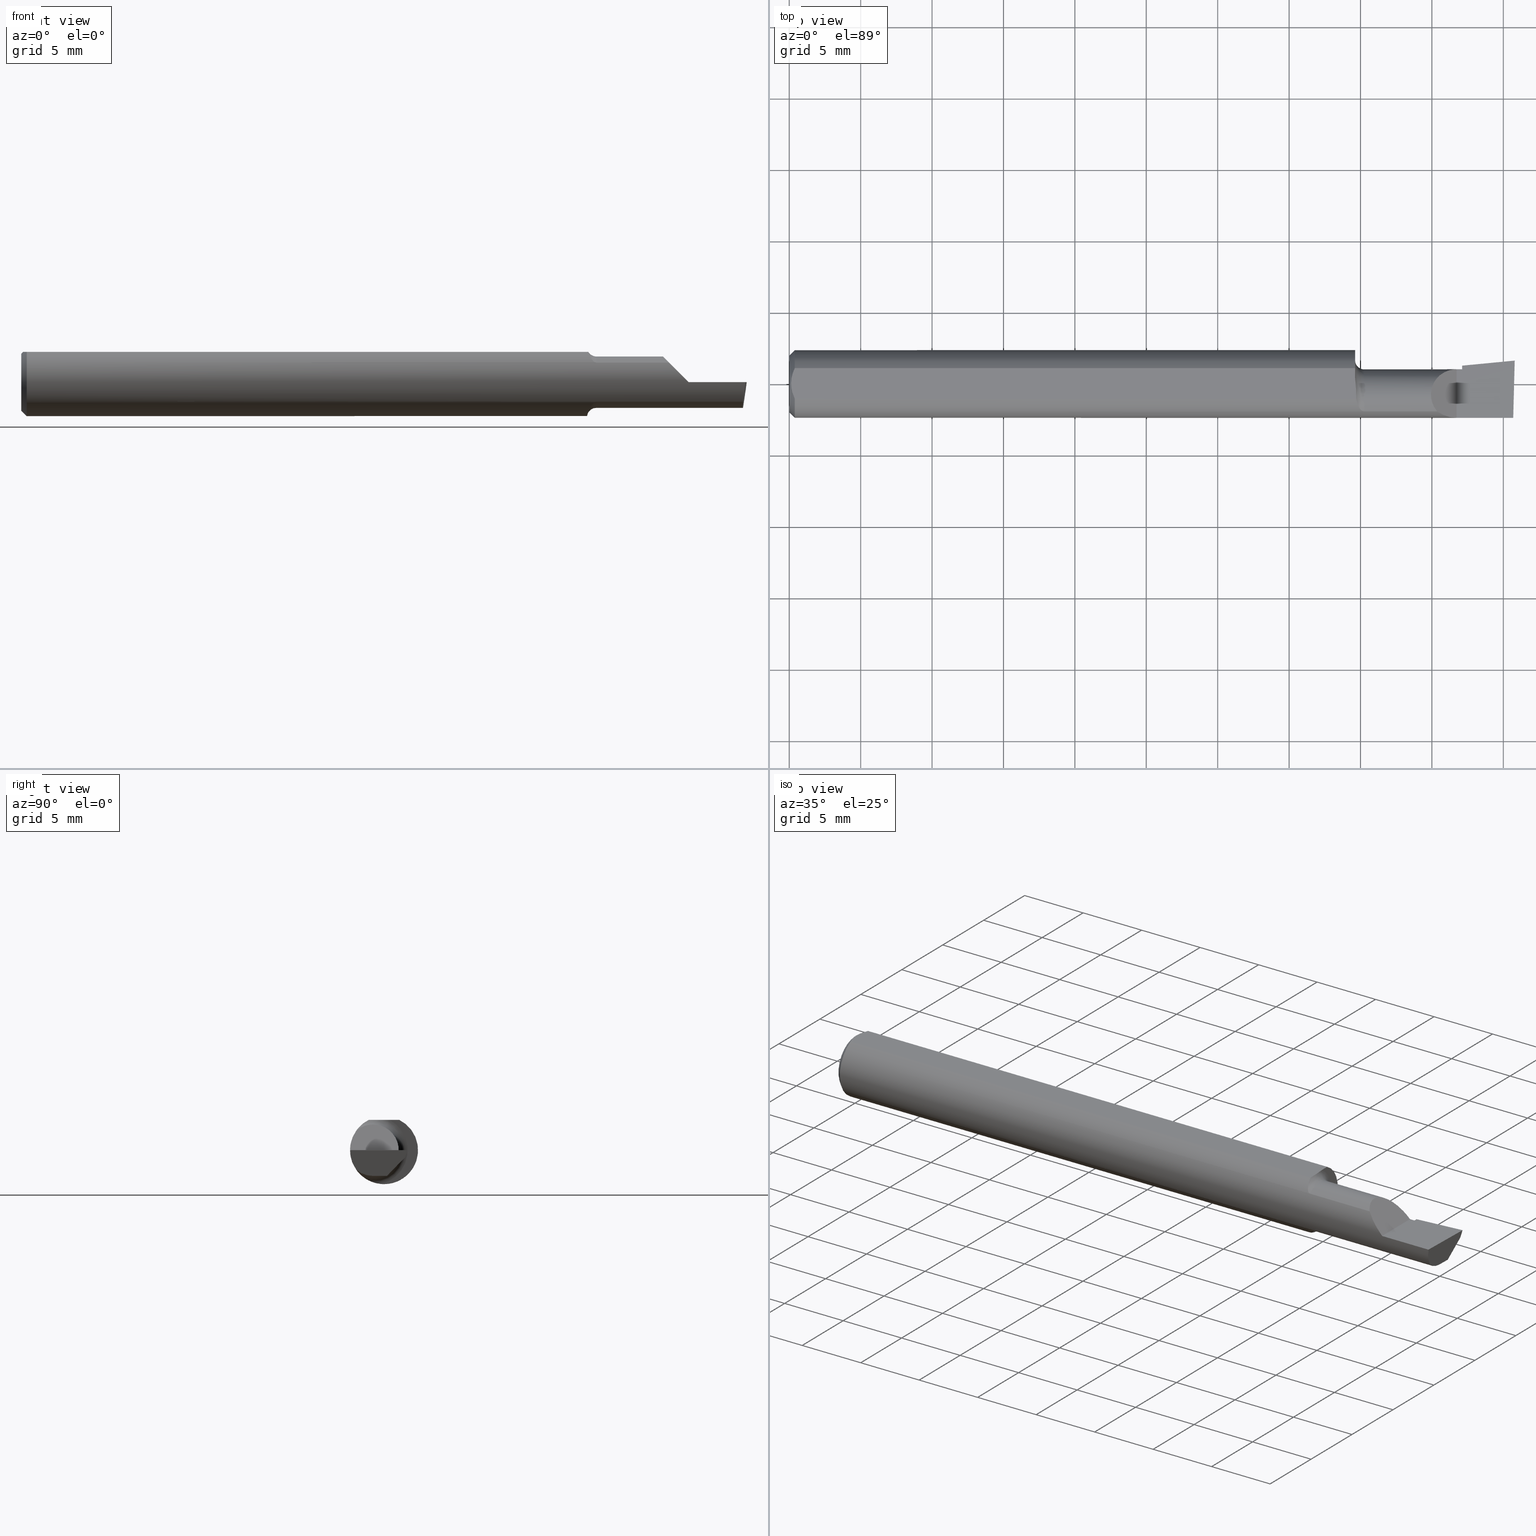
[diagram: canonical four-view strip — front | top / right | iso, engineering-drawing reading convention]
A machine part, canonical four-view strip (front | top / right | iso — engineering-drawing reading convention). The complete STEP part file that produces these views, byte-faithful:
ISO-10303-21;
HEADER;
FILE_DESCRIPTION (( 'STEP AP214' ),
    '1' );
FILE_NAME ('B160400.STEP',
    '2019-07-25T17:54:21',
    ( '' ),
    ( '' ),
    'SwSTEP 2.0',
    'SolidWorks 2018',
    '' );
FILE_SCHEMA (( 'AUTOMOTIVE_DESIGN' ));
ENDSEC;

DATA;
#1 = VERTEX_POINT ( 'NONE', #189 ) ;
#2 = CARTESIAN_POINT ( 'NONE',  ( 1.559999999999999831, -0.008104918032786992757, -0.09324843325054746335 ) ) ;
#3 = LINE ( 'NONE', #363, #227 ) ;
#4 = DIRECTION ( 'NONE',  ( -1.000000000000000000, -0.0000000000000000000, -0.0000000000000000000 ) ) ;
#5 = ADVANCED_FACE ( 'NONE', ( #513 ), #301, .T. ) ;
#6 = CARTESIAN_POINT ( 'NONE',  ( 1.989680968235101988, -0.07646557377049184590, -0.05398125626501730501 ) ) ;
#7 = CARTESIAN_POINT ( 'NONE',  ( 1.559999999999999831, -0.03049999999999999586, 0.0000000000000000000 ) ) ;
#8 = EDGE_CURVE ( 'NONE', #253, #144, #555, .T. ) ;
#9 = CIRCLE ( 'NONE', #12, 0.09360000000000001652 ) ;
#10 = CARTESIAN_POINT ( 'NONE',  ( 1.559999999999999831, 0.04209513035969836975, 0.08360000000000000764 ) ) ;
#11 = VERTEX_POINT ( 'NONE', #61 ) ;
#12 = AXIS2_PLACEMENT_3D ( 'NONE', #583, #357, #404 ) ;
#13 = CARTESIAN_POINT ( 'NONE',  ( 1.854999999999999982, 0.05043808801135670622, 0.0000000000000000000 ) ) ;
#14 = DIRECTION ( 'NONE',  ( 1.000000000000000000, 0.0000000000000000000, 0.0000000000000000000 ) ) ;
#15 = DIRECTION ( 'NONE',  ( 1.000000000000000000, 4.268512490100411279E-18, 0.0000000000000000000 ) ) ;
#16 = PLANE ( 'NONE',  #523 ) ;
#17 = ORIENTED_EDGE ( 'NONE', *, *, #29, .T. ) ;
#18 = ORIENTED_EDGE ( 'NONE', *, *, #426, .F. ) ;
#19 = DIRECTION ( 'NONE',  ( 0.0000000000000000000, 0.0000000000000000000, 1.000000000000000000 ) ) ;
#20 = VERTEX_POINT ( 'NONE', #417 ) ;
#21 = VECTOR ( 'NONE', #428, 39.37007874015748143 ) ;
#22 = CARTESIAN_POINT ( 'NONE',  ( 1.840000000000000080, -0.09360000000000005815, 1.959434878635762025E-17 ) ) ;
#23 = CARTESIAN_POINT ( 'NONE',  ( 2.000000000000003109, 0.06440000000001327995, 4.265097680108330883E-14 ) ) ;
#24 = ORIENTED_EDGE ( 'NONE', *, *, #499, .T. ) ;
#25 = AXIS2_PLACEMENT_3D ( 'NONE', #160, #256, #347 ) ;
#26 = ORIENTED_EDGE ( 'NONE', *, *, #286, .F. ) ;
#27 = PLANE ( 'NONE',  #399 ) ;
#28 = CARTESIAN_POINT ( 'NONE',  ( 0.005975039161239525769, -0.01453776427033148279, 0.08359999999999997988 ) ) ;
#29 = EDGE_CURVE ( 'NONE', #273, #44, #496, .T. ) ;
#30 = CARTESIAN_POINT ( 'NONE',  ( 0.01499999999999999944, -0.04209513035969835587, 0.08360000000000000764 ) ) ;
#31 = CARTESIAN_POINT ( 'NONE',  ( 0.01499999999999999598, 0.04209513035969837669, 0.08360000000000000764 ) ) ;
#32 = LENGTH_MEASURE_WITH_UNIT ( LENGTH_MEASURE( 0.02539999999999999897 ), #50 );
#33 = AXIS2_PLACEMENT_3D ( 'NONE', #360, #312, #400 ) ;
#34 = ORIENTED_EDGE ( 'NONE', *, *, #327, .F. ) ;
#35 = ORIENTED_EDGE ( 'NONE', *, *, #8, .T. ) ;
#36 = CIRCLE ( 'NONE', #440, 0.07859999999999965625 ) ;
#37 = EDGE_CURVE ( 'NONE', #512, #334, #296, .T. ) ;
#38 = CARTESIAN_POINT ( 'NONE',  ( 1.563100172961549239, -0.02248939038936998217, 0.08360000000000003539 ) ) ;
#39 = LINE ( 'NONE', #598, #412 ) ;
#40 = ORIENTED_EDGE ( 'NONE', *, *, #52, .T. ) ;
#41 = EDGE_CURVE ( 'NONE', #577, #20, #498, .T. ) ;
#42 = CARTESIAN_POINT ( 'NONE',  ( 1.987153287650115008, -0.009717623157789186117, -0.08879077981908643780 ) ) ;
#43 = CARTESIAN_POINT ( 'NONE',  ( 0.009492654797564337166, 0.02859466010166625619, 0.08359999999999997988 ) ) ;
#44 = VERTEX_POINT ( 'NONE', #94 ) ;
#45 = CARTESIAN_POINT ( 'NONE',  ( 1.563304846087257838, -0.03228758060674635777, 0.08360000000000003539 ) ) ;
#46 = ADVANCED_FACE ( 'NONE', ( #187 ), #325, .F. ) ;
#47 = EDGE_LOOP ( 'NONE', ( #86, #534, #66, #336, #156 ) ) ;
#48 = DIRECTION ( 'NONE',  ( 1.000000000000000000, 4.268512490100411279E-18, 0.0000000000000000000 ) ) ;
#49 = LINE ( 'NONE', #63, #522 ) ;
#50 =( LENGTH_UNIT ( ) NAMED_UNIT ( * ) SI_UNIT ( $, .METRE. ) );
#51 = CARTESIAN_POINT ( 'NONE',  ( 1.584999999999999964, -0.07646557377049209570, -0.05398125626501705521 ) ) ;
#52 = EDGE_CURVE ( 'NONE', #364, #545, #431, .T. ) ;
#53 = CARTESIAN_POINT ( 'NONE',  ( 1.997375993425184904, 0.05800444260848384992, -0.01999999999999999001 ) ) ;
#54 = ADVANCED_FACE ( 'NONE', ( #73 ), #248, .T. ) ;
#55 = PRESENTATION_STYLE_ASSIGNMENT (( #56 ) ) ;
#56 = SURFACE_STYLE_USAGE ( .BOTH. , #322 ) ;
#57 = DIRECTION ( 'NONE',  ( -1.000000000000000000, -4.268512490100411279E-18, -0.0000000000000000000 ) ) ;
#58 = ORIENTED_EDGE ( 'NONE', *, *, #482, .F. ) ;
#59 = MANIFOLD_SOLID_BREP ( 'Extrude7', #454 ) ;
#60 = DIRECTION ( 'NONE',  ( -1.000000000000000000, 0.0000000000000000000, 5.493159289247764363E-16 ) ) ;
#61 = CARTESIAN_POINT ( 'NONE',  ( 1.840000000000000080, -0.09360000000000005815, 1.959434878635762025E-17 ) ) ;
#62 = B_SPLINE_CURVE_WITH_KNOTS ( 'NONE', 3,
 ( #123, #402, #453, #177, #38, #45, #500, #266 ),
 .UNSPECIFIED., .F., .F.,
 ( 4, 2, 2, 4 ),
 ( 0.009645755411050990769, 0.01039251847056328788, 0.01076590000031943731, 0.01113928153007558500 ),
 .UNSPECIFIED. ) ;
#63 = CARTESIAN_POINT ( 'NONE',  ( 5.659797890829555466E-31, -0.09359999999999998876, 1.030335658007946046E-15 ) ) ;
#64 = EDGE_CURVE ( 'NONE', #533, #512, #39, .T. ) ;
#65 = CARTESIAN_POINT ( 'NONE',  ( 1.854999999999999982, -0.03049999999999999586, 0.0000000000000000000 ) ) ;
#66 = ORIENTED_EDGE ( 'NONE', *, *, #286, .T. ) ;
#67 = DIRECTION ( 'NONE',  ( -4.268512490100411279E-18, 1.000000000000000000, 0.0000000000000000000 ) ) ;
#68 = AXIS2_PLACEMENT_3D ( 'NONE', #331, #464, #376 ) ;
#69 = CARTESIAN_POINT ( 'NONE',  ( -3.026375355475531123E-19, 0.04039999999999997066, 1.030335658007946046E-15 ) ) ;
#70 = DIRECTION ( 'NONE',  ( -1.000000000000000000, -4.268512490100411279E-18, 0.0000000000000000000 ) ) ;
#71 = EDGE_CURVE ( 'NONE', #356, #245, #589, .T. ) ;
#72 = FACE_OUTER_BOUND ( 'NONE', #576, .T. ) ;
#73 = FACE_OUTER_BOUND ( 'NONE', #491, .T. ) ;
#74 = ORIENTED_EDGE ( 'NONE', *, *, #52, .F. ) ;
#75 = DIRECTION ( 'NONE',  ( 1.000000000000000000, 4.268512490100411279E-18, 0.0000000000000000000 ) ) ;
#76 = CARTESIAN_POINT ( 'NONE',  ( 1.562801882726447822, -0.04209513036031876931, 0.08360000000000000764 ) ) ;
#77 = CARTESIAN_POINT ( 'NONE',  ( 1.854999999999999982, -0.03049999999999999586, -0.07090000000000000469 ) ) ;
#78 = LENGTH_MEASURE_WITH_UNIT ( LENGTH_MEASURE( 0.02539999999999999897 ), #228 );
#79 = FACE_OUTER_BOUND ( 'NONE', #535, .T. ) ;
#80 = ORIENTED_EDGE ( 'NONE', *, *, #562, .F. ) ;
#81 = ORIENTED_EDGE ( 'NONE', *, *, #426, .T. ) ;
#82 = ORIENTED_EDGE ( 'NONE', *, *, #309, .T. ) ;
#83 = CARTESIAN_POINT ( 'NONE',  ( 0.01499999999999999598, 0.0000000000000000000, -0.09360000000000001652 ) ) ;
#84 =( NAMED_UNIT ( * ) PLANE_ANGLE_UNIT ( ) SI_UNIT ( $, .RADIAN. ) );
#85 = ORIENTED_EDGE ( 'NONE', *, *, #221, .T. ) ;
#86 = ORIENTED_EDGE ( 'NONE', *, *, #358, .T. ) ;
#87 = EDGE_CURVE ( 'NONE', #302, #105, #441, .T. ) ;
#88 = ORIENTED_EDGE ( 'NONE', *, *, #389, .F. ) ;
#89 =( BOUNDED_CURVE ( )  B_SPLINE_CURVE ( 3, ( #22, #438, #162, #391 ),
 .UNSPECIFIED., .F., .T. ) 
 B_SPLINE_CURVE_WITH_KNOTS ( ( 4, 4 ),
 ( 4.712388980384689674, 5.327100436569646824 ),
 .UNSPECIFIED. ) 
 CURVE ( )  GEOMETRIC_REPRESENTATION_ITEM ( )  RATIONAL_B_SPLINE_CURVE ( ( 1.000000000000000000, 0.9687579316594155943, 0.9687579316594155943, 1.000000000000000000 ) ) 
 REPRESENTATION_ITEM ( '' )  );
#90 = LINE ( 'NONE', #109, #305 ) ;
#91 = ADVANCED_FACE ( 'NONE', ( #79 ), #560, .T. ) ;
#92 = CARTESIAN_POINT ( 'NONE',  ( 1.988806546520622609, -0.03049999999999999586, -0.07090000000000000469 ) ) ;
#93 = CARTESIAN_POINT ( 'NONE',  ( 1.572379481194433826, -0.06851133057105313062, -0.06386523205972817474 ) ) ;
#94 = CARTESIAN_POINT ( 'NONE',  ( 0.01499999999999999944, -0.04209513035969835587, 0.08360000000000000764 ) ) ;
#95 = ORIENTED_EDGE ( 'NONE', *, *, #64, .T. ) ;
#96 = CARTESIAN_POINT ( 'NONE',  ( 1.568064680686317880, -0.06127374973417910181, -0.07108395546218128358 ) ) ;
#97 = ORIENTED_EDGE ( 'NONE', *, *, #196, .F. ) ;
#98 = B_SPLINE_CURVE_WITH_KNOTS ( 'NONE', 3,
 ( #51, #237, #595, #278, #141, #418, #93, #96, #371, #462, #236, #365, #274, #2 ),
 .UNSPECIFIED., .F., .F.,
 ( 4, 2, 2, 2, 2, 2, 4 ),
 ( 1.959158530842256095E-07, 0.0001424059935984817464, 0.0002846160713438792775, 0.0005690362268346746107, 0.001137876537816257146, 0.001706716848797839355, 0.002275557159779421131 ),
 .UNSPECIFIED. ) ;
#99 =( CONVERSION_BASED_UNIT ( 'INCH', #32 ) LENGTH_UNIT ( ) NAMED_UNIT ( #284 ) );
#100 = DIRECTION ( 'NONE',  ( -4.268512490100411279E-18, 1.000000000000000000, 2.344761903626518103E-33 ) ) ;
#101 = VECTOR ( 'NONE', #100, 39.37007874015748143 ) ;
#102 = VERTEX_POINT ( 'NONE', #287 ) ;
#103 = CARTESIAN_POINT ( 'NONE',  ( 1.719999999999999973, -0.07646557377049184590, -0.05398125626501730501 ) ) ;
#104 = ORIENTED_EDGE ( 'NONE', *, *, #482, .T. ) ;
#105 = VERTEX_POINT ( 'NONE', #330 ) ;
#106 = DIRECTION ( 'NONE',  ( 1.000000000000000000, 4.268512490100411279E-18, 0.0000000000000000000 ) ) ;
#107 = DIRECTION ( 'NONE',  ( -1.000000000000000000, -0.0000000000000000000, -0.0000000000000000000 ) ) ;
#108 = LINE ( 'NONE', #111, #155 ) ;
#109 = CARTESIAN_POINT ( 'NONE',  ( 1.854999999999999982, -0.03049999999999999586, -0.07090000000000000469 ) ) ;
#110 = ORIENTED_EDGE ( 'NONE', *, *, #344, .T. ) ;
#111 = CARTESIAN_POINT ( 'NONE',  ( 1.559999999999999831, 0.1436000000000000332, 0.08359999999999999376 ) ) ;
#112 = ORIENTED_EDGE ( 'NONE', *, *, #471, .F. ) ;
#113 = EDGE_CURVE ( 'NONE', #505, #253, #281, .T. ) ;
#114 = DIRECTION ( 'NONE',  ( 2.972230601656783191E-18, -0.6963153109074925462, -0.7177360153954946975 ) ) ;
#115 = AXIS2_PLACEMENT_3D ( 'NONE', #457, #176, #131 ) ;
#116 = CARTESIAN_POINT ( 'NONE',  ( 1.562801882726447822, -0.04209513036031876931, 0.08360000000000000764 ) ) ;
#117 = LINE ( 'NONE', #42, #324 ) ;
#118 = ORIENTED_EDGE ( 'NONE', *, *, #37, .T. ) ;
#119 = VECTOR ( 'NONE', #114, 39.37007874015748854 ) ;
#120 = AXIS2_PLACEMENT_3D ( 'NONE', #508, #551, #556 ) ;
#121 = ORIENTED_EDGE ( 'NONE', *, *, #390, .T. ) ;
#122 = VERTEX_POINT ( 'NONE', #198 ) ;
#123 = CARTESIAN_POINT ( 'NONE',  ( 1.559999999999999831, 0.01648776436477898677, 0.08360000000000000764 ) ) ;
#124 = VECTOR ( 'NONE', #169, 39.37007874015748143 ) ;
#125 = EDGE_CURVE ( 'NONE', #144, #333, #186, .T. ) ;
#126 = ORIENTED_EDGE ( 'NONE', *, *, #196, .T. ) ;
#127 = ADVANCED_FACE ( 'NONE', ( #539 ), #567, .F. ) ;
#128 = AXIS2_PLACEMENT_3D ( 'NONE', #185, #515, #285 ) ;
#129 = DIRECTION ( 'NONE',  ( 0.7071067811865391350, 0.0000000000000000000, -0.7071067811865558994 ) ) ;
#130 = ADVANCED_FACE ( 'NONE', ( #449 ), #519, .F. ) ;
#131 = DIRECTION ( 'NONE',  ( 1.000000000000000000, 0.0000000000000000000, 0.0000000000000000000 ) ) ;
#132 =( NAMED_UNIT ( * ) PLANE_ANGLE_UNIT ( ) SI_UNIT ( $, .RADIAN. ) );
#133 = ORIENTED_EDGE ( 'NONE', *, *, #390, .F. ) ;
#134 = ORIENTED_EDGE ( 'NONE', *, *, #212, .T. ) ;
#135 = DIRECTION ( 'NONE',  ( 0.0000000000000000000, 1.000000000000000000, 0.0000000000000000000 ) ) ;
#136 = DIRECTION ( 'NONE',  ( 4.268512490100411279E-18, -1.000000000000000000, 0.0000000000000000000 ) ) ;
#137 = FACE_OUTER_BOUND ( 'NONE', #483, .T. ) ;
#138 = DIRECTION ( 'NONE',  ( -1.000000000000000000, -0.0000000000000000000, -0.0000000000000000000 ) ) ;
#139 = ADVANCED_FACE ( 'NONE', ( #72 ), #16, .T. ) ;
#140 = PRESENTATION_LAYER_ASSIGNMENT (  '', '', ( #511 ) ) ;
#141 = CARTESIAN_POINT ( 'NONE',  ( 1.577244873747906340, -0.07364233512257564729, -0.05779374943917678364 ) ) ;
#142 = DIRECTION ( 'NONE',  ( 0.0000000000000000000, 0.0000000000000000000, 1.000000000000000000 ) ) ;
#143 = CARTESIAN_POINT ( 'NONE',  ( 1.995862624392067852, -0.09360000000000009979, -6.605666309584449409E-17 ) ) ;
#144 = VERTEX_POINT ( 'NONE', #374 ) ;
#145 = B_SPLINE_CURVE_WITH_KNOTS ( 'NONE', 3,
 ( #30, #575, #346, #28, #525, #436 ),
 .UNSPECIFIED., .F., .F.,
 ( 4, 2, 4 ),
 ( 0.005785415439423114564, 0.006333348270144337384, 0.006881281100865560205 ),
 .UNSPECIFIED. ) ;
#146 = DIRECTION ( 'NONE',  ( -1.000000000000000000, -0.0000000000000000000, -0.0000000000000000000 ) ) ;
#147 = CARTESIAN_POINT ( 'NONE',  ( 2.000000000000000000, 0.1436000000000000332, 0.08359999999999999376 ) ) ;
#148 = DIRECTION ( 'NONE',  ( 0.0000000000000000000, -1.189000693621284344E-16, -1.000000000000000000 ) ) ;
#149 = EDGE_LOOP ( 'NONE', ( #223, #432, #110, #258, #202, #205, #297, #209, #384, #383, #348, #215 ) ) ;
#150 = UNCERTAINTY_MEASURE_WITH_UNIT (LENGTH_MEASURE( 1.000000000000000082E-05 ), #99, 'distance_accuracy_value', 'NONE');
#151 = EDGE_LOOP ( 'NONE', ( #339, #216 ) ) ;
#152 = DIRECTION ( 'NONE',  ( 0.0000000000000000000, 1.000000000000000000, 0.0000000000000000000 ) ) ;
#153 = DIRECTION ( 'NONE',  ( 4.268512490100411279E-18, -1.000000000000000000, 0.0000000000000000000 ) ) ;
#154 =( GEOMETRIC_REPRESENTATION_CONTEXT ( 3 ) GLOBAL_UNCERTAINTY_ASSIGNED_CONTEXT ( ( #150 ) ) GLOBAL_UNIT_ASSIGNED_CONTEXT ( ( #99, #465, #192 ) ) REPRESENTATION_CONTEXT ( 'NONE', 'WORKASPACE' ) );
#155 = VECTOR ( 'NONE', #218, 39.37007874015748143 ) ;
#156 = ORIENTED_EDGE ( 'NONE', *, *, #592, .T. ) ;
#157 = DIRECTION ( 'NONE',  ( -0.7071067811865433539, 0.0000000000000000000, -0.7071067811865516806 ) ) ;
#158 = ORIENTED_EDGE ( 'NONE', *, *, #212, .F. ) ;
#159 = CARTESIAN_POINT ( 'NONE',  ( 1.566280435687897876, -0.05700135229382548296, 0.07471156184488422780 ) ) ;
#160 = CARTESIAN_POINT ( 'NONE',  ( 1.986456763647800550, -0.06267397991240475363, -0.08317158399080336328 ) ) ;
#161 = CARTESIAN_POINT ( 'NONE',  ( 1.564271705382763944, -0.04994636227297241660, 0.07964666709476363182 ) ) ;
#162 = CARTESIAN_POINT ( 'NONE',  ( 1.801938678439108932, -0.08770433171880961942, 0.03806132156089080121 ) ) ;
#163 = ORIENTED_EDGE ( 'NONE', *, *, #268, .F. ) ;
#164 = DIRECTION ( 'NONE',  ( -1.000000000000000000, -4.268512490100411279E-18, 0.0000000000000000000 ) ) ;
#165 = EDGE_LOOP ( 'NONE', ( #439, #262, #82, #17, #104 ) ) ;
#166 = ORIENTED_EDGE ( 'NONE', *, *, #355, .T. ) ;
#167 = COLOUR_RGB ( '',0.7529411764705882248, 0.7529411764705882248, 0.7529411764705882248 ) ;
#168 = VECTOR ( 'NONE', #269, 39.37007874015748143 ) ;
#169 = DIRECTION ( 'NONE',  ( 0.7071067811865391350, 8.659560562355035164E-17, 0.7071067811865558994 ) ) ;
#170 = SURFACE_STYLE_FILL_AREA ( #275 ) ;
#171 = ORIENTED_EDGE ( 'NONE', *, *, #445, .T. ) ;
#172 = CARTESIAN_POINT ( 'NONE',  ( 0.01499999999999999598, 0.04209513035969837669, 0.08360000000000000764 ) ) ;
#173 = AXIS2_PLACEMENT_3D ( 'NONE', #345, #157, #387 ) ;
#174 = APPLICATION_CONTEXT ( 'automotive_design' ) ;
#175 = ADVANCED_BREP_SHAPE_REPRESENTATION ( 'B160400', ( #59, #115 ), #405 ) ;
#176 = DIRECTION ( 'NONE',  ( 0.0000000000000000000, 0.0000000000000000000, 1.000000000000000000 ) ) ;
#177 = CARTESIAN_POINT ( 'NONE',  ( 1.562745430550909864, -0.01759363372028095035, 0.08360000000000000764 ) ) ;
#178 = APPLICATION_PROTOCOL_DEFINITION ( 'draft international standard', 'automotive_design', 1998, #320 ) ;
#179 = CARTESIAN_POINT ( 'NONE',  ( 1.988664666329833741, -0.06350290078668613392, -0.06501910055627768692 ) ) ;
#180 = ADVANCED_FACE ( 'NONE', ( #526 ), #299, .F. ) ;
#181 = AXIS2_PLACEMENT_3D ( 'NONE', #200, #516, #571 ) ;
#182 = FILL_AREA_STYLE_COLOUR ( '', #167 ) ;
#183 = CARTESIAN_POINT ( 'NONE',  ( 0.0000000000000000000, -0.03050000000000000627, 0.0000000000000000000 ) ) ;
#184 = ADVANCED_FACE ( 'NONE', ( #495 ), #208, .F. ) ;
#185 = CARTESIAN_POINT ( 'NONE',  ( 1.854999999999999982, -0.03049999999999999586, 0.0000000000000000000 ) ) ;
#186 = LINE ( 'NONE', #429, #553 ) ;
#187 = FACE_OUTER_BOUND ( 'NONE', #565, .T. ) ;
#188 = DIRECTION ( 'NONE',  ( 1.000000000000000000, 0.0000000000000000000, 0.0000000000000000000 ) ) ;
#189 = CARTESIAN_POINT ( 'NONE',  ( 1.584999999999999964, -0.07646557377049204018, 0.05398125626501712460 ) ) ;
#190 = CARTESIAN_POINT ( 'NONE',  ( 0.0000000000000000000, 0.04209513035969837669, 0.08360000000000000764 ) ) ;
#191 = ADVANCED_FACE ( 'NONE', ( #503 ), #538, .F. ) ;
#192 =( NAMED_UNIT ( * ) SI_UNIT ( $, .STERADIAN. ) SOLID_ANGLE_UNIT ( ) );
#193 = FACE_OUTER_BOUND ( 'NONE', #443, .T. ) ;
#194 = CARTESIAN_POINT ( 'NONE',  ( 1.854999999999999982, 0.02466814268713797206, -0.04023083677511909290 ) ) ;
#195 = CARTESIAN_POINT ( 'NONE',  ( 0.0000000000000000000, 0.0000000000000000000, 0.0000000000000000000 ) ) ;
#196 = EDGE_CURVE ( 'NONE', #406, #302, #108, .T. ) ;
#197 = DIMENSIONAL_EXPONENTS ( 1.000000000000000000, 0.0000000000000000000, 0.0000000000000000000, 0.0000000000000000000, 0.0000000000000000000, 0.0000000000000000000, 0.0000000000000000000 ) ;
#198 = CARTESIAN_POINT ( 'NONE',  ( 0.005000000000000236026, 1.025183009042025117E-17, 0.08360000000000000764 ) ) ;
#199 = VECTOR ( 'NONE', #129, 39.37007874015748143 ) ;
#200 = CARTESIAN_POINT ( 'NONE',  ( 1.434596552969581662, 0.003814945941878274301, -0.01999999999999999695 ) ) ;
#201 = ORIENTED_EDGE ( 'NONE', *, *, #252, .T. ) ;
#202 = ORIENTED_EDGE ( 'NONE', *, *, #488, .F. ) ;
#203 =( BOUNDED_CURVE ( )  B_SPLINE_CURVE ( 3, ( #446, #179, #502, #92 ),
 .UNSPECIFIED., .F., .T. ) 
 B_SPLINE_CURVE_WITH_KNOTS ( ( 4, 4 ),
 ( 5.787864769132275988, 6.493234751459696419 ),
 .UNSPECIFIED. ) 
 CURVE ( )  GEOMETRIC_REPRESENTATION_ITEM ( )  RATIONAL_B_SPLINE_CURVE ( ( 1.000000000000000000, 0.9589657668801497836, 0.9589657668801497836, 1.000000000000000000 ) ) 
 REPRESENTATION_ITEM ( '' )  );
#204 = VERTEX_POINT ( 'NONE', #31 ) ;
#205 = ORIENTED_EDGE ( 'NONE', *, *, #586, .F. ) ;
#206 = DIRECTION ( 'NONE',  ( 0.0000000000000000000, 0.0000000000000000000, 1.000000000000000000 ) ) ;
#207 = DIRECTION ( 'NONE',  ( -1.000000000000000000, -0.0000000000000000000, -0.0000000000000000000 ) ) ;
#208 = PLANE ( 'NONE',  #173 ) ;
#209 = ORIENTED_EDGE ( 'NONE', *, *, #29, .F. ) ;
#210 = EDGE_LOOP ( 'NONE', ( #244, #373, #468, #349, #282, #518, #166, #366, #121, #354 ) ) ;
#211 = ORIENTED_EDGE ( 'NONE', *, *, #355, .F. ) ;
#212 = EDGE_CURVE ( 'NONE', #545, #333, #294, .T. ) ;
#213 = CARTESIAN_POINT ( 'NONE',  ( 1.434010493224923133, 0.009901409102841263188, -6.829619984160658046E-17 ) ) ;
#214 = FACE_OUTER_BOUND ( 'NONE', #151, .T. ) ;
#215 = ORIENTED_EDGE ( 'NONE', *, *, #358, .F. ) ;
#216 = ORIENTED_EDGE ( 'NONE', *, *, #361, .T. ) ;
#217 = CIRCLE ( 'NONE', #128, 0.07089999999999999081 ) ;
#218 = DIRECTION ( 'NONE',  ( 4.268512490100411279E-18, -1.000000000000000000, 1.189000693621284344E-16 ) ) ;
#219 = AXIS2_PLACEMENT_3D ( 'NONE', #183, #57, #419 ) ;
#220 =( NAMED_UNIT ( * ) SI_UNIT ( $, .STERADIAN. ) SOLID_ANGLE_UNIT ( ) );
#221 = EDGE_CURVE ( 'NONE', #497, #122, #353, .T. ) ;
#222 = CARTESIAN_POINT ( 'NONE',  ( 0.005981829149300850468, 0.01454044632356567279, 0.08360000000000000764 ) ) ;
#223 = ORIENTED_EDGE ( 'NONE', *, *, #71, .F. ) ;
#224 = ORIENTED_EDGE ( 'NONE', *, *, #268, .T. ) ;
#225 = AXIS2_PLACEMENT_3D ( 'NONE', #147, #148, #477 ) ;
#226 = CIRCLE ( 'NONE', #341, 0.07859999999999965625 ) ;
#227 = VECTOR ( 'NONE', #232, 39.37007874015748854 ) ;
#228 =( LENGTH_UNIT ( ) NAMED_UNIT ( * ) SI_UNIT ( $, .METRE. ) );
#229 = CARTESIAN_POINT ( 'NONE',  ( 0.005000000000000236026, 1.025183009042025117E-17, 0.08360000000000000764 ) ) ;
#230 = DIRECTION ( 'NONE',  ( 0.0000000000000000000, 0.0000000000000000000, -1.000000000000000000 ) ) ;
#231 = FACE_OUTER_BOUND ( 'NONE', #47, .T. ) ;
#232 = DIRECTION ( 'NONE',  ( 0.9953961983671800740, 0.09584575252021028391, 0.0000000000000000000 ) ) ;
#233 = ORIENTED_EDGE ( 'NONE', *, *, #41, .F. ) ;
#234 = PRODUCT_DEFINITION_CONTEXT ( 'detailed design', #174, 'design' ) ;
#235 = VERTEX_POINT ( 'NONE', #77 ) ;
#236 = CARTESIAN_POINT ( 'NONE',  ( 1.561756004422870880, -0.03669390866074716956, -0.08642009587044903463 ) ) ;
#237 = CARTESIAN_POINT ( 'NONE',  ( 1.583095068269286587, -0.07646557377049204018, -0.05398125626501708990 ) ) ;
#238 = CARTESIAN_POINT ( 'NONE',  ( 1.786018743734982150, -0.07646557377049187365, 0.05398125626501727031 ) ) ;
#239 = PLANE ( 'NONE',  #181 ) ;
#240 = LINE ( 'NONE', #424, #119 ) ;
#241 = DIRECTION ( 'NONE',  ( -0.02617694830786038498, -0.9996573249755575929, 0.0000000000000000000 ) ) ;
#242 = CARTESIAN_POINT ( 'NONE',  ( 1.559999999999999831, 0.06539999999999997204, 0.0000000000000000000 ) ) ;
#243 = DIRECTION ( 'NONE',  ( 0.0000000000000000000, -1.000000000000000000, 0.0000000000000000000 ) ) ;
#244 = ORIENTED_EDGE ( 'NONE', *, *, #323, .F. ) ;
#245 = VERTEX_POINT ( 'NONE', #489 ) ;
#246 = LINE ( 'NONE', #473, #547 ) ;
#247 = CARTESIAN_POINT ( 'NONE',  ( 1.576159648777483824, -0.07275446879445283954, 0.05891786234966332053 ) ) ;
#248 = CONICAL_SURFACE ( 'NONE', #532, 0.09360000000000001652, 0.7853981633974601584 ) ;
#249 = ORIENTED_EDGE ( 'NONE', *, *, #125, .F. ) ;
#250 = AXIS2_PLACEMENT_3D ( 'NONE', #416, #367, #136 ) ;
#251 = CARTESIAN_POINT ( 'NONE',  ( 1.854999999999999982, 0.05043808801135670622, 0.0000000000000000000 ) ) ;
#252 = EDGE_CURVE ( 'NONE', #204, #273, #9, .T. ) ;
#253 = VERTEX_POINT ( 'NONE', #306 ) ;
#254 = SHAPE_DEFINITION_REPRESENTATION ( #463, #175 ) ;
#255 = CYLINDRICAL_SURFACE ( 'NONE', #528, 0.09360000000000001652 ) ;
#256 = DIRECTION ( 'NONE',  ( -0.9922060308645512805, 0.02598182930468072652, 0.1218693434051217050 ) ) ;
#257 = CARTESIAN_POINT ( 'NONE',  ( 1.854999999999999982, 0.03289115998609076080, -0.03175485530777679560 ) ) ;
#258 = ORIENTED_EDGE ( 'NONE', *, *, #562, .T. ) ;
#259 = EDGE_CURVE ( 'NONE', #11, #20, #467, .T. ) ;
#260 = CARTESIAN_POINT ( 'NONE',  ( 1.840000000000000080, -0.2500000000000000555, 1.959434878635762025E-17 ) ) ;
#261 = LINE ( 'NONE', #190, #311 ) ;
#262 = ORIENTED_EDGE ( 'NONE', *, *, #520, .F. ) ;
#263 = CARTESIAN_POINT ( 'NONE',  ( 1.989811960493453435, 0.007895210578134158330, -0.07090000000000001856 ) ) ;
#264 = PRESENTATION_STYLE_ASSIGNMENT (( #359 ) ) ;
#265 = DIRECTION ( 'NONE',  ( 1.000000000000000000, 0.0000000000000000000, 0.0000000000000000000 ) ) ;
#266 = CARTESIAN_POINT ( 'NONE',  ( 1.562801882726447822, -0.04209513036031876931, 0.08360000000000000764 ) ) ;
#267 = APPLICATION_PROTOCOL_DEFINITION ( 'draft international standard', 'automotive_design', 1998, #174 ) ;
#268 = EDGE_CURVE ( 'NONE', #122, #204, #337, .T. ) ;
#269 = DIRECTION ( 'NONE',  ( -1.000000000000000000, -0.0000000000000000000, -0.0000000000000000000 ) ) ;
#270 = ADVANCED_FACE ( 'NONE', ( #372 ), #293, .T. ) ;
#271 = ORIENTED_EDGE ( 'NONE', *, *, #8, .F. ) ;
#272 = CARTESIAN_POINT ( 'NONE',  ( 1.584999999999999964, -0.03049999999999999586, 0.0000000000000000000 ) ) ;
#273 = VERTEX_POINT ( 'NONE', #591 ) ;
#274 = CARTESIAN_POINT ( 'NONE',  ( 1.559999999999993392, -0.01550498344099972454, -0.09260523827686173437 ) ) ;
#275 = FILL_AREA_STYLE ('',( #549 ) ) ;
#276 = CIRCLE ( 'NONE', #307, 0.07089999999999997693 ) ;
#277 = PRODUCT_CONTEXT ( 'NONE', #320, 'mechanical' ) ;
#278 = CARTESIAN_POINT ( 'NONE',  ( 1.578436874164509174, -0.07452398798010725911, -0.05664421274495013564 ) ) ;
#279 = DIRECTION ( 'NONE',  ( 0.0000000000000000000, 0.0000000000000000000, 1.000000000000000000 ) ) ;
#280 = ADVANCED_FACE ( 'NONE', ( #231 ), #582, .F. ) ;
#281 = LINE ( 'NONE', #290, #101 ) ;
#282 = ORIENTED_EDGE ( 'NONE', *, *, #41, .T. ) ;
#283 = CARTESIAN_POINT ( 'NONE',  ( 1.769987205483423143, 0.04039999999999997760, 0.07001279451657600739 ) ) ;
#284 = DIMENSIONAL_EXPONENTS ( 1.000000000000000000, 0.0000000000000000000, 0.0000000000000000000, 0.0000000000000000000, 0.0000000000000000000, 0.0000000000000000000, 0.0000000000000000000 ) ;
#285 = DIRECTION ( 'NONE',  ( 0.0000000000000000000, -1.000000000000000000, 0.0000000000000000000 ) ) ;
#286 = EDGE_CURVE ( 'NONE', #302, #563, #62, .T. ) ;
#287 = CARTESIAN_POINT ( 'NONE',  ( 1.988806546520622609, -0.03049999999999999586, -0.07090000000000000469 ) ) ;
#288 = EDGE_CURVE ( 'NONE', #333, #292, #117, .T. ) ;
#289 = PRODUCT_RELATED_PRODUCT_CATEGORY ( 'part', '', ( #564 ) ) ;
#290 = CARTESIAN_POINT ( 'NONE',  ( 1.854999999999999982, -0.2500000000000000555, 1.135460985248596835E-17 ) ) ;
#291 = DIRECTION ( 'NONE',  ( -0.0000000000000000000, 0.0000000000000000000, 1.000000000000000000 ) ) ;
#292 = VERTEX_POINT ( 'NONE', #263 ) ;
#293 = CONICAL_SURFACE ( 'NONE', #308, 0.09360000000000001652, 0.7853981633974601584 ) ;
#294 = LINE ( 'NONE', #397, #596 ) ;
#295 = CARTESIAN_POINT ( 'NONE',  ( 0.0000000000000000000, 0.0000000000000000000, 0.0000000000000000000 ) ) ;
#296 = LINE ( 'NONE', #194, #573 ) ;
#297 = ORIENTED_EDGE ( 'NONE', *, *, #327, .T. ) ;
#298 = VECTOR ( 'NONE', #75, 39.37007874015748143 ) ;
#299 = PLANE ( 'NONE',  #25 ) ;
#300 = PRODUCT_DEFINITION ( 'UNKNOWN', '', #485, #234 ) ;
#301 = CYLINDRICAL_SURFACE ( 'NONE', #219, 0.07089999999999999081 ) ;
#302 = VERTEX_POINT ( 'NONE', #317 ) ;
#303 = CARTESIAN_POINT ( 'NONE',  ( 1.786018743734982150, -0.07646557377049187365, 0.05398125626501727031 ) ) ;
#304 = CARTESIAN_POINT ( 'NONE',  ( 1.580716106491990347, -0.07573797007891094890, 0.05501896193679951808 ) ) ;
#305 = VECTOR ( 'NONE', #152, 39.37007874015748143 ) ;
#306 = CARTESIAN_POINT ( 'NONE',  ( 1.854999999999999982, 0.05043808801135914871, 1.030845766359249298E-15 ) ) ;
#307 = AXIS2_PLACEMENT_3D ( 'NONE', #65, #15, #243 ) ;
#308 = AXIS2_PLACEMENT_3D ( 'NONE', #543, #265, #587 ) ;
#309 = EDGE_CURVE ( 'NONE', #578, #273, #313, .T. ) ;
#310 = CARTESIAN_POINT ( 'NONE',  ( 0.005000000000000223883, 0.007308422719211823959, 0.08360000000000000764 ) ) ;
#311 = VECTOR ( 'NONE', #510, 39.37007874015748143 ) ;
#312 = DIRECTION ( 'NONE',  ( -1.000000000000000000, -4.268512490100411279E-18, -0.0000000000000000000 ) ) ;
#313 = LINE ( 'NONE', #83, #199 ) ;
#314 = FILL_AREA_STYLE ('',( #182 ) ) ;
#315 = ORIENTED_EDGE ( 'NONE', *, *, #361, .F. ) ;
#316 = ORIENTED_EDGE ( 'NONE', *, *, #442, .T. ) ;
#317 = CARTESIAN_POINT ( 'NONE',  ( 1.559999999999999831, 0.01648776436477898677, 0.08360000000000000764 ) ) ;
#318 = ORIENTED_EDGE ( 'NONE', *, *, #259, .F. ) ;
#319 = AXIS2_PLACEMENT_3D ( 'NONE', #213, #444, #395 ) ;
#320 = APPLICATION_CONTEXT ( 'automotive_design' ) ;
#321 = CARTESIAN_POINT ( 'NONE',  ( 1.559999999999999831, 0.0000000000000000000, 0.0000000000000000000 ) ) ;
#322 = SURFACE_SIDE_STYLE ('',( #170 ) ) ;
#323 = EDGE_CURVE ( 'NONE', #356, #102, #203, .T. ) ;
#324 = VECTOR ( 'NONE', #593, 39.37007874015748143 ) ;
#325 = PLANE ( 'NONE',  #250 ) ;
#326 = EDGE_LOOP ( 'NONE', ( #118, #452, #133 ) ) ;
#327 = EDGE_CURVE ( 'NONE', #563, #44, #342, .T. ) ;
#328 = CARTESIAN_POINT ( 'NONE',  ( 1.991772787678610435, -0.2497845628634191573, -6.377686106282116365E-17 ) ) ;
#329 = EDGE_CURVE ( 'NONE', #334, #292, #3, .T. ) ;
#330 = CARTESIAN_POINT ( 'NONE',  ( 1.559999999999999831, -0.008104918032786992757, -0.09324843325054746335 ) ) ;
#331 = CARTESIAN_POINT ( 'NONE',  ( 0.0000000000000000000, 0.0000000000000000000, 0.0000000000000000000 ) ) ;
#332 = DIMENSIONAL_EXPONENTS ( 1.000000000000000000, 0.0000000000000000000, 0.0000000000000000000, 0.0000000000000000000, 0.0000000000000000000, 0.0000000000000000000, 0.0000000000000000000 ) ;
#333 = VERTEX_POINT ( 'NONE', #53 ) ;
#334 = VERTEX_POINT ( 'NONE', #548 ) ;
#335 = DIRECTION ( 'NONE',  ( 0.9953961983671800740, 0.09584575252021028391, -0.0000000000000000000 ) ) ;
#336 = ORIENTED_EDGE ( 'NONE', *, *, #586, .T. ) ;
#337 = B_SPLINE_CURVE_WITH_KNOTS ( 'NONE', 3,
 ( #229, #310, #222, #43, #408, #172 ),
 .UNSPECIFIED., .F., .F.,
 ( 4, 2, 4 ),
 ( 0.006881281100865560205, 0.007427683811376459971, 0.007974086521887359738 ),
 .UNSPECIFIED. ) ;
#338 = DIRECTION ( 'NONE',  ( -1.000000000000000000, -4.268512490100411279E-18, -0.0000000000000000000 ) ) ;
#339 = ORIENTED_EDGE ( 'NONE', *, *, #520, .T. ) ;
#340 = ORIENTED_EDGE ( 'NONE', *, *, #445, .F. ) ;
#341 = AXIS2_PLACEMENT_3D ( 'NONE', #295, #207, #206 ) ;
#342 = LINE ( 'NONE', #456, #168 ) ;
#343 = CARTESIAN_POINT ( 'NONE',  ( 1.854999999999999982, 0.04039999999999999841, 1.030335658007946243E-15 ) ) ;
#344 = EDGE_CURVE ( 'NONE', #364, #11, #49, .T. ) ;
#345 = CARTESIAN_POINT ( 'NONE',  ( 1.840000000000000080, -0.2500000000000000555, 1.959434878635762025E-17 ) ) ;
#346 = CARTESIAN_POINT ( 'NONE',  ( 0.009539353699420832430, -0.02875682547511371895, 0.08360000000000000764 ) ) ;
#347 = DIRECTION ( 'NONE',  ( 0.1219104985252570661, 0.0000000000000000000, 0.9925410975618708109 ) ) ;
#348 = ORIENTED_EDGE ( 'NONE', *, *, #377, .F. ) ;
#349 = ORIENTED_EDGE ( 'NONE', *, *, #488, .T. ) ;
#350 = CARTESIAN_POINT ( 'NONE',  ( 1.014425817094896765, -0.03050000000000000280, 4.730953979651876041E-16 ) ) ;
#351 = CIRCLE ( 'NONE', #120, 0.07089999999999999081 ) ;
#352 = CARTESIAN_POINT ( 'NONE',  ( 1.572663484135164103, -0.06910045470751306762, 0.06324836830213459438 ) ) ;
#353 = LINE ( 'NONE', #537, #124 ) ;
#354 = ORIENTED_EDGE ( 'NONE', *, *, #442, .F. ) ;
#355 = EDGE_CURVE ( 'NONE', #505, #533, #217, .T. ) ;
#356 = VERTEX_POINT ( 'NONE', #6 ) ;
#357 = DIRECTION ( 'NONE',  ( -1.000000000000000000, -0.0000000000000000000, -0.0000000000000000000 ) ) ;
#358 = EDGE_CURVE ( 'NONE', #245, #105, #98, .T. ) ;
#359 = SURFACE_STYLE_USAGE ( .BOTH. , #447 ) ;
#360 = CARTESIAN_POINT ( 'NONE',  ( 1.584999999999999964, -0.03050000000000000627, 0.0000000000000000000 ) ) ;
#361 = EDGE_CURVE ( 'NONE', #497, #578, #36, .T. ) ;
#362 = UNCERTAINTY_MEASURE_WITH_UNIT (LENGTH_MEASURE( 1.000000000000000082E-05 ), #455, 'distance_accuracy_value', 'NONE');
#363 = CARTESIAN_POINT ( 'NONE',  ( 1.996243332730717412, 0.008514481289464279762, -0.07090000000000000469 ) ) ;
#364 = VERTEX_POINT ( 'NONE', #143 ) ;
#365 = CARTESIAN_POINT ( 'NONE',  ( 1.560329054248859260, -0.02276897781908348781, -0.09108484809305519847 ) ) ;
#366 = ORIENTED_EDGE ( 'NONE', *, *, #411, .F. ) ;
#367 = DIRECTION ( 'NONE',  ( -1.000000000000000000, -4.268512490100411279E-18, 0.0000000000000000000 ) ) ;
#368 = CARTESIAN_POINT ( 'NONE',  ( 0.01499999999999999598, 0.0000000000000000000, 0.0000000000000000000 ) ) ;
#369 = DIRECTION ( 'NONE',  ( 1.253267817926300420E-18, -0.2936076258024066243, -0.9559260233253794592 ) ) ;
#370 = ADVANCED_FACE ( 'NONE', ( #214 ), #559, .F. ) ;
#371 = CARTESIAN_POINT ( 'NONE',  ( 1.566019021117886156, -0.05561872204144571036, -0.07562530238090231505 ) ) ;
#372 = FACE_OUTER_BOUND ( 'NONE', #165, .T. ) ;
#373 = ORIENTED_EDGE ( 'NONE', *, *, #71, .T. ) ;
#374 = CARTESIAN_POINT ( 'NONE',  ( 1.854999999999999982, 0.04429519371539577394, -0.01999999999999999695 ) ) ;
#375 = CARTESIAN_POINT ( 'NONE',  ( 1.840000000000000080, 0.04039999999999989433, 1.959434878635762025E-17 ) ) ;
#376 = DIRECTION ( 'NONE',  ( 0.0000000000000000000, 0.0000000000000000000, -1.000000000000000000 ) ) ;
#377 = EDGE_CURVE ( 'NONE', #105, #406, #509, .T. ) ;
#378 = B_SPLINE_CURVE_WITH_KNOTS ( 'NONE', 3,
 ( #116, #161, #159, #531, #352, #247, #581, #304, #493, #458 ),
 .UNSPECIFIED., .F., .F.,
 ( 4, 2, 2, 2, 4 ),
 ( 4.457974472501381848E-07, 0.0006718060699091158751, 0.001007486206140048536, 0.001175326274255520179, 0.001343166342370992038 ),
 .UNSPECIFIED. ) ;
#379 = CARTESIAN_POINT ( 'NONE',  ( 0.0000000000000000000, 0.0000000000000000000, 0.0000000000000000000 ) ) ;
#380 = DIRECTION ( 'NONE',  ( 0.0000000000000000000, -1.000000000000000000, 0.0000000000000000000 ) ) ;
#381 = AXIS2_PLACEMENT_3D ( 'NONE', #272, #450, #542 ) ;
#382 = CARTESIAN_POINT ( 'NONE',  ( 2.000000000000000000, -0.2500000000000000555, -6.829619984160658046E-17 ) ) ;
#383 = ORIENTED_EDGE ( 'NONE', *, *, #389, .T. ) ;
#384 = ORIENTED_EDGE ( 'NONE', *, *, #252, .F. ) ;
#385 = CARTESIAN_POINT ( 'NONE',  ( 1.993469067315748022, -0.09360000000000003040, -0.01948727793214144466 ) ) ;
#386 = VECTOR ( 'NONE', #478, 39.37007874015748143 ) ;
#387 = DIRECTION ( 'NONE',  ( -0.7071067811865516806, 0.0000000000000000000, 0.7071067811865433539 ) ) ;
#388 = CARTESIAN_POINT ( 'NONE',  ( 0.0000000000000000000, 1.054420894065869177E-17, 0.07859999999999965625 ) ) ;
#389 = EDGE_CURVE ( 'NONE', #204, #406, #261, .T. ) ;
#390 = EDGE_CURVE ( 'NONE', #512, #235, #351, .T. ) ;
#391 = CARTESIAN_POINT ( 'NONE',  ( 1.786018743734982150, -0.07646557377049187365, 0.05398125626501727031 ) ) ;
#392 = AXIS2_PLACEMENT_3D ( 'NONE', #321, #48, #135 ) ;
#393 = SURFACE_STYLE_FILL_AREA ( #314 ) ;
#394 = DIRECTION ( 'NONE',  ( 0.9953961983671787417, 0.09584575252022466130, -5.467869873542577569E-16 ) ) ;
#395 = DIRECTION ( 'NONE',  ( 0.0000000000000000000, -0.2936076258024066243, -0.9559260233253794592 ) ) ;
#396 = CARTESIAN_POINT ( 'NONE',  ( 1.719999999999999973, -0.07646557377049184590, 0.05398125626501730501 ) ) ;
#397 = CARTESIAN_POINT ( 'NONE',  ( 1.989254605881540128, 0.03820997996014426773, -0.08190066459132541721 ) ) ;
#398 = EDGE_LOOP ( 'NONE', ( #480, #340, #527, #158, #74, #561 ) ) ;
#399 = AXIS2_PLACEMENT_3D ( 'NONE', #251, #164, #579 ) ;
#400 = DIRECTION ( 'NONE',  ( 4.268512490100411279E-18, -1.000000000000000000, 0.0000000000000000000 ) ) ;
#401 = EDGE_CURVE ( 'NONE', #356, #364, #572, .T. ) ;
#402 = CARTESIAN_POINT ( 'NONE',  ( 1.559999999999999831, 0.006771783253975924462, 0.08360000000000003539 ) ) ;
#403 =( CONVERSION_BASED_UNIT ( 'INCH', #474 ) LENGTH_UNIT ( ) NAMED_UNIT ( #197 ) );
#404 = DIRECTION ( 'NONE',  ( 0.0000000000000000000, 0.0000000000000000000, 1.000000000000000000 ) ) ;
#405 =( GEOMETRIC_REPRESENTATION_CONTEXT ( 3 ) GLOBAL_UNCERTAINTY_ASSIGNED_CONTEXT ( ( #362 ) ) GLOBAL_UNIT_ASSIGNED_CONTEXT ( ( #455, #132, #501 ) ) REPRESENTATION_CONTEXT ( 'NONE', 'WORKASPACE' ) );
#406 = VERTEX_POINT ( 'NONE', #10 ) ;
#407 = EDGE_LOOP ( 'NONE', ( #481, #171, #316, #484 ) ) ;
#408 = CARTESIAN_POINT ( 'NONE',  ( 0.01203648650249650523, 0.03550565407121123590, 0.08360000000000000764 ) ) ;
#409 = ADVANCED_FACE ( 'NONE', ( #486 ), #255, .T. ) ;
#410 = DIRECTION ( 'NONE',  ( 0.02617694830786037805, 0.9996573249755575929, -1.459184416195409269E-17 ) ) ;
#411 = EDGE_CURVE ( 'NONE', #512, #533, #276, .T. ) ;
#412 = VECTOR ( 'NONE', #514, 39.37007874015748854 ) ;
#413 = DIRECTION ( 'NONE',  ( 2.972230601656783191E-18, -0.6963153109074925462, -0.7177360153954946975 ) ) ;
#414 = COLOUR_RGB ( '',0.7529411764705882248, 0.7529411764705882248, 0.7529411764705882248 ) ;
#415 = AXIS2_PLACEMENT_3D ( 'NONE', #368, #4, #142 ) ;
#416 = CARTESIAN_POINT ( 'NONE',  ( 1.854999999999999982, 0.05043808801135670622, 0.0000000000000000000 ) ) ;
#417 = CARTESIAN_POINT ( 'NONE',  ( 1.840000000000000080, 0.04039999999999989433, 1.959434878635762025E-17 ) ) ;
#418 = CARTESIAN_POINT ( 'NONE',  ( 1.574015914171515762, -0.07074360550885047672, -0.06136535069389147806 ) ) ;
#419 = DIRECTION ( 'NONE',  ( 4.268512490100411279E-18, -1.000000000000000000, 0.0000000000000000000 ) ) ;
#420 = ADVANCED_FACE ( 'NONE', ( #137 ), #239, .F. ) ;
#421 = STYLED_ITEM ( 'NONE', ( #264 ), #175 ) ;
#422 = VECTOR ( 'NONE', #369, 39.37007874015748854 ) ;
#423 = ORIENTED_EDGE ( 'NONE', *, *, #329, .F. ) ;
#424 = CARTESIAN_POINT ( 'NONE',  ( 1.854999999999999982, 0.02466814268713797206, -0.04023083677511909290 ) ) ;
#425 = DIRECTION ( 'NONE',  ( -5.493159289247764363E-16, 0.0000000000000000000, -1.000000000000000000 ) ) ;
#426 = EDGE_CURVE ( 'NONE', #144, #533, #240, .T. ) ;
#427 = CIRCLE ( 'NONE', #381, 0.07089999999999997693 ) ;
#428 = DIRECTION ( 'NONE',  ( -1.000000000000000000, 5.691349986800549142E-18, -0.0000000000000000000 ) ) ;
#429 = CARTESIAN_POINT ( 'NONE',  ( 1.434596552969581662, 0.003814945941878274301, -0.01999999999999999695 ) ) ;
#430 = VECTOR ( 'NONE', #569, 39.37007874015748143 ) ;
#431 = LINE ( 'NONE', #328, #544 ) ;
#432 = ORIENTED_EDGE ( 'NONE', *, *, #401, .T. ) ;
#433 = CARTESIAN_POINT ( 'NONE',  ( 0.0000000000000000000, 0.0000000000000000000, -0.07859999999999965625 ) ) ;
#434 = MECHANICAL_DESIGN_GEOMETRIC_PRESENTATION_REPRESENTATION (  '', ( #511 ), #154 ) ;
#435 = EDGE_CURVE ( 'NONE', #235, #334, #90, .T. ) ;
#436 = CARTESIAN_POINT ( 'NONE',  ( 0.005000000000000236026, 1.025183009042025117E-17, 0.08360000000000000764 ) ) ;
#437 = ORIENTED_EDGE ( 'NONE', *, *, #113, .F. ) ;
#438 = CARTESIAN_POINT ( 'NONE',  ( 1.820512722067858524, -0.09360000000000003040, 0.01948727793214133017 ) ) ;
#439 = ORIENTED_EDGE ( 'NONE', *, *, #221, .F. ) ;
#440 = AXIS2_PLACEMENT_3D ( 'NONE', #195, #146, #279 ) ;
#441 = CIRCLE ( 'NONE', #574, 0.09589999999999999913 ) ;
#442 = EDGE_CURVE ( 'NONE', #102, #235, #475, .T. ) ;
#443 = EDGE_LOOP ( 'NONE', ( #26, #97, #88, #163, #58, #34 ) ) ;
#444 = DIRECTION ( 'NONE',  ( 0.09165774897393337561, -0.9519021185660612172, 0.2923717047227308852 ) ) ;
#445 = EDGE_CURVE ( 'NONE', #292, #102, #246, .T. ) ;
#446 = CARTESIAN_POINT ( 'NONE',  ( 1.989680968235101988, -0.07646557377049184590, -0.05398125626501730501 ) ) ;
#447 = SURFACE_SIDE_STYLE ('',( #393 ) ) ;
#448 = PRESENTATION_LAYER_ASSIGNMENT (  '', '', ( #421 ) ) ;
#449 = FACE_OUTER_BOUND ( 'NONE', #599, .T. ) ;
#450 = DIRECTION ( 'NONE',  ( -1.000000000000000000, -4.268512490100411279E-18, -0.0000000000000000000 ) ) ;
#451 = ORIENTED_EDGE ( 'NONE', *, *, #411, .T. ) ;
#452 = ORIENTED_EDGE ( 'NONE', *, *, #435, .F. ) ;
#453 = CARTESIAN_POINT ( 'NONE',  ( 1.561342386211017619, -0.002910845068973393415, 0.08360000000000000764 ) ) ;
#454 = CLOSED_SHELL ( 'NONE', ( #54, #557, #409, #459, #130, #184, #370, #270, #280, #91, #139, #5, #127, #191, #420, #46, #180 ) ) ;
#455 =( CONVERSION_BASED_UNIT ( 'INCH', #78 ) LENGTH_UNIT ( ) NAMED_UNIT ( #332 ) );
#456 = CARTESIAN_POINT ( 'NONE',  ( 0.0000000000000000000, -0.04209513035969835587, 0.08360000000000000764 ) ) ;
#457 = CARTESIAN_POINT ( 'NONE',  ( 0.0000000000000000000, 0.0000000000000000000, 0.0000000000000000000 ) ) ;
#458 = CARTESIAN_POINT ( 'NONE',  ( 1.584999999999999964, -0.07646557377049204018, 0.05398125626501712460 ) ) ;
#459 = ADVANCED_FACE ( 'NONE', ( #193 ), #566, .F. ) ;
#460 = CARTESIAN_POINT ( 'NONE',  ( 1.991342063257270034, -0.08770433171880959167, -0.03806132156089091223 ) ) ;
#461 = ORIENTED_EDGE ( 'NONE', *, *, #113, .T. ) ;
#462 = CARTESIAN_POINT ( 'NONE',  ( 1.562866246175462992, -0.04341922408232365416, -0.08323100132652182237 ) ) ;
#463 = PRODUCT_DEFINITION_SHAPE ( 'NONE', 'NONE',  #300 ) ;
#464 = DIRECTION ( 'NONE',  ( 1.000000000000000000, 0.0000000000000000000, 0.0000000000000000000 ) ) ;
#465 =( NAMED_UNIT ( * ) PLANE_ANGLE_UNIT ( ) SI_UNIT ( $, .RADIAN. ) );
#466 = AXIS2_PLACEMENT_3D ( 'NONE', #382, #425, #60 ) ;
#467 = LINE ( 'NONE', #260, #479 ) ;
#468 = ORIENTED_EDGE ( 'NONE', *, *, #592, .F. ) ;
#469 = CARTESIAN_POINT ( 'NONE',  ( 1.989680968235101988, -0.07646557377049184590, -0.05398125626501730501 ) ) ;
#470 = ORIENTED_EDGE ( 'NONE', *, *, #259, .T. ) ;
#471 = EDGE_CURVE ( 'NONE', #20, #505, #530, .T. ) ;
#472 = ORIENTED_EDGE ( 'NONE', *, *, #344, .F. ) ;
#473 = CARTESIAN_POINT ( 'NONE',  ( 1.988814216640107491, -0.03020708995424807933, -0.07090000000000000469 ) ) ;
#474 = LENGTH_MEASURE_WITH_UNIT ( LENGTH_MEASURE( 0.02539999999999999897 ), #550 );
#475 = LINE ( 'NONE', #517, #21 ) ;
#476 = MECHANICAL_DESIGN_GEOMETRIC_PRESENTATION_REPRESENTATION (  '', ( #421 ), #588 ) ;
#477 = DIRECTION ( 'NONE',  ( 0.0000000000000000000, 1.000000000000000000, -1.189000693621284344E-16 ) ) ;
#478 = DIRECTION ( 'NONE',  ( 1.000000000000000000, 4.268512490100411279E-18, 0.0000000000000000000 ) ) ;
#479 = VECTOR ( 'NONE', #594, 39.37007874015748143 ) ;
#480 = ORIENTED_EDGE ( 'NONE', *, *, #323, .T. ) ;
#481 = ORIENTED_EDGE ( 'NONE', *, *, #329, .T. ) ;
#482 = EDGE_CURVE ( 'NONE', #44, #122, #145, .T. ) ;
#483 = EDGE_LOOP ( 'NONE', ( #585, #541, #423, #597, #590, #18 ) ) ;
#484 = ORIENTED_EDGE ( 'NONE', *, *, #435, .T. ) ;
#485 = PRODUCT_DEFINITION_FORMATION_WITH_SPECIFIED_SOURCE ( 'ANY', '', #564, .NOT_KNOWN. ) ;
#486 = FACE_OUTER_BOUND ( 'NONE', #149, .T. ) ;
#487 = CARTESIAN_POINT ( 'NONE',  ( 1.854999999999999982, 0.003160401389698347125, -0.06240021937689312764 ) ) ;
#488 = EDGE_CURVE ( 'NONE', #1, #577, #536, .T. ) ;
#489 = CARTESIAN_POINT ( 'NONE',  ( 1.584999999999999964, -0.07646557377049209570, -0.05398125626501705521 ) ) ;
#490 = EDGE_LOOP ( 'NONE', ( #24, #134, #249, #271 ) ) ;
#491 = EDGE_LOOP ( 'NONE', ( #315, #85, #224, #201, #584 ) ) ;
#492 = DIRECTION ( 'NONE',  ( -0.1240019227989063721, -0.3022330132596635077, -0.9451342385281351621 ) ) ;
#493 = CARTESIAN_POINT ( 'NONE',  ( 1.582734503266369108, -0.07646557377049206794, 0.05398125626501702745 ) ) ;
#494 = AXIS2_PLACEMENT_3D ( 'NONE', #242, #106, #67 ) ;
#495 = FACE_OUTER_BOUND ( 'NONE', #546, .T. ) ;
#496 = CIRCLE ( 'NONE', #415, 0.09360000000000001652 ) ;
#497 = VERTEX_POINT ( 'NONE', #388 ) ;
#498 =( BOUNDED_CURVE ( )  B_SPLINE_CURVE ( 3, ( #238, #558, #283, #375 ),
 .UNSPECIFIED., .F., .T. ) 
 B_SPLINE_CURVE_WITH_KNOTS ( ( 4, 4 ),
 ( 5.577815324852164025, 7.853981633974482790 ),
 .UNSPECIFIED. ) 
 CURVE ( )  GEOMETRIC_REPRESENTATION_ITEM ( )  RATIONAL_B_SPLINE_CURVE ( ( 1.000000000000000000, 0.6128902971210724582, 0.6128902971210724582, 1.000000000000000000 ) ) 
 REPRESENTATION_ITEM ( '' )  );
#499 = EDGE_CURVE ( 'NONE', #253, #545, #521, .T. ) ;
#500 = CARTESIAN_POINT ( 'NONE',  ( 1.563150981066091738, -0.03719006435924360893, 0.08360000000000003539 ) ) ;
#501 =( NAMED_UNIT ( * ) SI_UNIT ( $, .STERADIAN. ) SOLID_ANGLE_UNIT ( ) );
#502 = CARTESIAN_POINT ( 'NONE',  ( 1.988360720229886081, -0.04752541915734221495, -0.07089999999999999081 ) ) ;
#503 = FACE_OUTER_BOUND ( 'NONE', #490, .T. ) ;
#504 = ORIENTED_EDGE ( 'NONE', *, *, #499, .F. ) ;
#505 = VERTEX_POINT ( 'NONE', #343 ) ;
#506 = CARTESIAN_POINT ( 'NONE',  ( 0.01499999999999999598, 0.0000000000000000000, 0.0000000000000000000 ) ) ;
#507 = VECTOR ( 'NONE', #394, 39.37007874015748143 ) ;
#508 = CARTESIAN_POINT ( 'NONE',  ( 1.854999999999999982, -0.03049999999999999586, 0.0000000000000000000 ) ) ;
#509 = CIRCLE ( 'NONE', #392, 0.09360000000000001652 ) ;
#510 = DIRECTION ( 'NONE',  ( 1.000000000000000000, 0.0000000000000000000, 0.0000000000000000000 ) ) ;
#511 = STYLED_ITEM ( 'NONE', ( #55 ), #59 ) ;
#512 = VERTEX_POINT ( 'NONE', #487 ) ;
#513 = FACE_OUTER_BOUND ( 'NONE', #210, .T. ) ;
#514 = DIRECTION ( 'NONE',  ( 2.972230601656783191E-18, -0.6963153109074925462, -0.7177360153954946975 ) ) ;
#515 = DIRECTION ( 'NONE',  ( -1.000000000000000000, -4.268512490100411279E-18, -0.0000000000000000000 ) ) ;
#516 = DIRECTION ( 'NONE',  ( 0.06894566448119619773, -0.7160281025913034503, 0.6946583704589934793 ) ) ;
#517 = CARTESIAN_POINT ( 'NONE',  ( 2.000000000000000000, -0.03049999999999999586, -0.07090000000000000469 ) ) ;
#518 = ORIENTED_EDGE ( 'NONE', *, *, #471, .T. ) ;
#519 = PLANE ( 'NONE',  #466 ) ;
#520 = EDGE_CURVE ( 'NONE', #578, #497, #226, .T. ) ;
#521 = LINE ( 'NONE', #350, #507 ) ;
#522 = VECTOR ( 'NONE', #138, 39.37007874015748143 ) ;
#523 = AXIS2_PLACEMENT_3D ( 'NONE', #13, #70, #153 ) ;
#524 = CARTESIAN_POINT ( 'NONE',  ( 1.995862624392067852, -0.09360000000000009979, -6.605666309584449409E-17 ) ) ;
#525 = CARTESIAN_POINT ( 'NONE',  ( 0.005000000000000228220, -0.007328888879231052964, 0.08360000000000000764 ) ) ;
#526 = FACE_OUTER_BOUND ( 'NONE', #398, .T. ) ;
#527 = ORIENTED_EDGE ( 'NONE', *, *, #288, .F. ) ;
#528 = AXIS2_PLACEMENT_3D ( 'NONE', #379, #107, #19 ) ;
#529 = ORIENTED_EDGE ( 'NONE', *, *, #87, .T. ) ;
#530 = LINE ( 'NONE', #69, #386 ) ;
#531 = CARTESIAN_POINT ( 'NONE',  ( 1.570886223621647648, -0.06626224018846509078, 0.06624030822967881538 ) ) ;
#532 = AXIS2_PLACEMENT_3D ( 'NONE', #506, #188, #230 ) ;
#533 = VERTEX_POINT ( 'NONE', #257 ) ;
#534 = ORIENTED_EDGE ( 'NONE', *, *, #87, .F. ) ;
#535 = EDGE_LOOP ( 'NONE', ( #540, #126, #529 ) ) ;
#536 = LINE ( 'NONE', #396, #298 ) ;
#537 = CARTESIAN_POINT ( 'NONE',  ( 0.01499999999999999598, 1.146269404001922775E-17, 0.09360000000000001652 ) ) ;
#538 = PLANE ( 'NONE',  #319 ) ;
#539 = FACE_OUTER_BOUND ( 'NONE', #407, .T. ) ;
#540 = ORIENTED_EDGE ( 'NONE', *, *, #377, .T. ) ;
#541 = ORIENTED_EDGE ( 'NONE', *, *, #288, .T. ) ;
#542 = DIRECTION ( 'NONE',  ( 0.0000000000000000000, -1.000000000000000000, 0.0000000000000000000 ) ) ;
#543 = CARTESIAN_POINT ( 'NONE',  ( 0.01499999999999999598, 0.0000000000000000000, 0.0000000000000000000 ) ) ;
#544 = VECTOR ( 'NONE', #410, 39.37007874015748854 ) ;
#545 = VERTEX_POINT ( 'NONE', #23 ) ;
#546 = EDGE_LOOP ( 'NONE', ( #233, #80, #470 ) ) ;
#547 = VECTOR ( 'NONE', #241, 39.37007874015748854 ) ;
#548 = CARTESIAN_POINT ( 'NONE',  ( 1.854999999999999982, -0.005085704783422788366, -0.07090000000000000469 ) ) ;
#549 = FILL_AREA_STYLE_COLOUR ( '', #414 ) ;
#550 =( LENGTH_UNIT ( ) NAMED_UNIT ( * ) SI_UNIT ( $, .METRE. ) );
#551 = DIRECTION ( 'NONE',  ( -1.000000000000000000, -4.268512490100411279E-18, -0.0000000000000000000 ) ) ;
#552 = AXIS2_PLACEMENT_3D ( 'NONE', #570, #291, #14 ) ;
#553 = VECTOR ( 'NONE', #335, 39.37007874015748143 ) ;
#554 = CARTESIAN_POINT ( 'NONE',  ( 1.854999999999999982, 0.04694360585384958762, -0.01137731495658560361 ) ) ;
#555 = LINE ( 'NONE', #554, #422 ) ;
#556 = DIRECTION ( 'NONE',  ( 0.0000000000000000000, -1.000000000000000000, 0.0000000000000000000 ) ) ;
#557 = ADVANCED_FACE ( 'NONE', ( #568 ), #27, .T. ) ;
#558 = CARTESIAN_POINT ( 'NONE',  ( 1.740628359091399568, -0.02315981068686312830, 0.09937164090859931798 ) ) ;
#559 = PLANE ( 'NONE',  #68 ) ;
#560 = PLANE ( 'NONE',  #494 ) ;
#561 = ORIENTED_EDGE ( 'NONE', *, *, #401, .F. ) ;
#562 = EDGE_CURVE ( 'NONE', #11, #577, #89, .T. ) ;
#563 = VERTEX_POINT ( 'NONE', #76 ) ;
#564 = PRODUCT ( 'B160400', 'B160400', '', ( #277 ) ) ;
#565 = EDGE_LOOP ( 'NONE', ( #451, #95 ) ) ;
#566 = PLANE ( 'NONE',  #225 ) ;
#567 = PLANE ( 'NONE',  #552 ) ;
#568 = FACE_OUTER_BOUND ( 'NONE', #326, .T. ) ;
#569 = DIRECTION ( 'NONE',  ( -1.000000000000000000, -4.268512490100411279E-18, -0.0000000000000000000 ) ) ;
#570 = CARTESIAN_POINT ( 'NONE',  ( 2.000000000000000000, -0.03049999999999999586, -0.07090000000000000469 ) ) ;
#571 = DIRECTION ( 'NONE',  ( 0.0000000000000000000, -0.6963153109074925462, -0.7177360153954946975 ) ) ;
#572 =( BOUNDED_CURVE ( )  B_SPLINE_CURVE ( 3, ( #469, #460, #385, #524 ),
 .UNSPECIFIED., .F., .F. ) 
 B_SPLINE_CURVE_WITH_KNOTS ( ( 4, 4 ),
 ( 0.7460354263298282218, 1.360746882514785705 ),
 .UNSPECIFIED. ) 
 CURVE ( )  GEOMETRIC_REPRESENTATION_ITEM ( )  RATIONAL_B_SPLINE_CURVE ( ( 1.000000000000000000, 0.9687579316594154832, 0.9687579316594154832, 1.000000000000000000 ) ) 
 REPRESENTATION_ITEM ( '' )  );
#573 = VECTOR ( 'NONE', #413, 39.37007874015748854 ) ;
#574 = AXIS2_PLACEMENT_3D ( 'NONE', #7, #338, #380 ) ;
#575 = CARTESIAN_POINT ( 'NONE',  ( 0.01206089165507025739, -0.03555991978469312531, 0.08360000000000000764 ) ) ;
#576 = EDGE_LOOP ( 'NONE', ( #35, #81, #211, #461 ) ) ;
#577 = VERTEX_POINT ( 'NONE', #303 ) ;
#578 = VERTEX_POINT ( 'NONE', #433 ) ;
#579 = DIRECTION ( 'NONE',  ( 4.268512490100411279E-18, -1.000000000000000000, 0.0000000000000000000 ) ) ;
#580 = UNCERTAINTY_MEASURE_WITH_UNIT (LENGTH_MEASURE( 1.000000000000000082E-05 ), #403, 'distance_accuracy_value', 'NONE');
#581 = CARTESIAN_POINT ( 'NONE',  ( 1.577475890146723403, -0.07388913376859283788, 0.05747801488572824163 ) ) ;
#582 = TOROIDAL_SURFACE ( 'NONE', #33, 0.09589999999999997138, 0.02500000000000007078 ) ;
#583 = CARTESIAN_POINT ( 'NONE',  ( 0.01499999999999999598, 0.0000000000000000000, 0.0000000000000000000 ) ) ;
#584 = ORIENTED_EDGE ( 'NONE', *, *, #309, .F. ) ;
#585 = ORIENTED_EDGE ( 'NONE', *, *, #125, .T. ) ;
#586 = EDGE_CURVE ( 'NONE', #563, #1, #378, .T. ) ;
#587 = DIRECTION ( 'NONE',  ( 0.0000000000000000000, 0.0000000000000000000, -1.000000000000000000 ) ) ;
#588 =( GEOMETRIC_REPRESENTATION_CONTEXT ( 3 ) GLOBAL_UNCERTAINTY_ASSIGNED_CONTEXT ( ( #580 ) ) GLOBAL_UNIT_ASSIGNED_CONTEXT ( ( #403, #84, #220 ) ) REPRESENTATION_CONTEXT ( 'NONE', 'WORKASPACE' ) );
#589 = LINE ( 'NONE', #103, #430 ) ;
#590 = ORIENTED_EDGE ( 'NONE', *, *, #64, .F. ) ;
#591 = CARTESIAN_POINT ( 'NONE',  ( 0.01499999999999999598, 0.0000000000000000000, -0.09360000000000001652 ) ) ;
#592 = EDGE_CURVE ( 'NONE', #1, #245, #427, .T. ) ;
#593 = DIRECTION ( 'NONE',  ( -0.1053106618241542308, -0.6976485211320179181, -0.7086580314005247461 ) ) ;
#594 = DIRECTION ( 'NONE',  ( -0.0000000000000000000, 1.000000000000000000, -0.0000000000000000000 ) ) ;
#595 = CARTESIAN_POINT ( 'NONE',  ( 1.581350203328816262, -0.07594758393974096466, -0.05472071011664911971 ) ) ;
#596 = VECTOR ( 'NONE', #492, 39.37007874015748854 ) ;
#597 = ORIENTED_EDGE ( 'NONE', *, *, #37, .F. ) ;
#598 = CARTESIAN_POINT ( 'NONE',  ( 1.854999999999999982, 0.02466814268713797206, -0.04023083677511909290 ) ) ;
#599 = EDGE_LOOP ( 'NONE', ( #472, #40, #504, #437, #112, #318 ) ) ;
ENDSEC;
END-ISO-10303-21;
